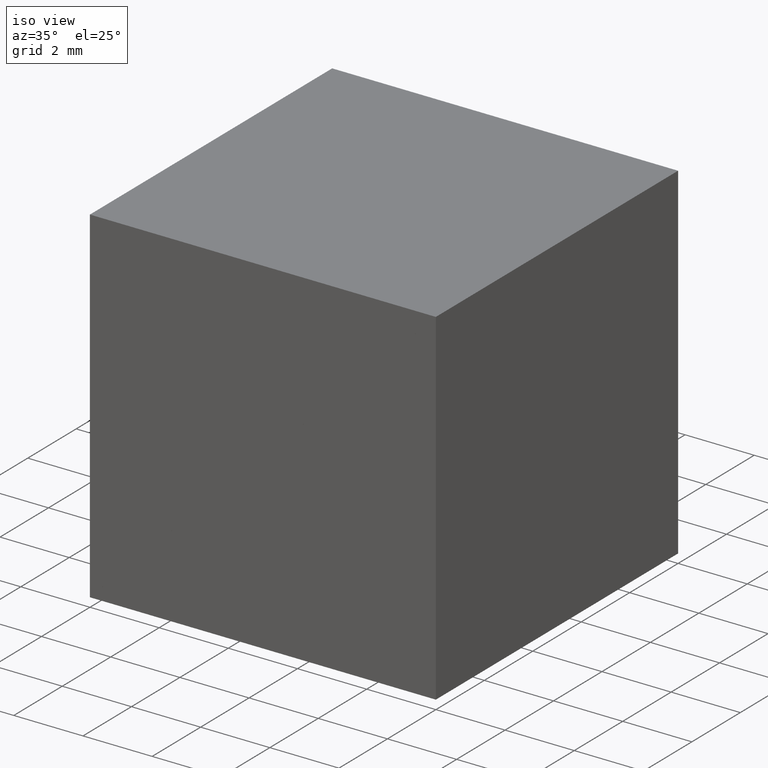
[diagram: clean part render]
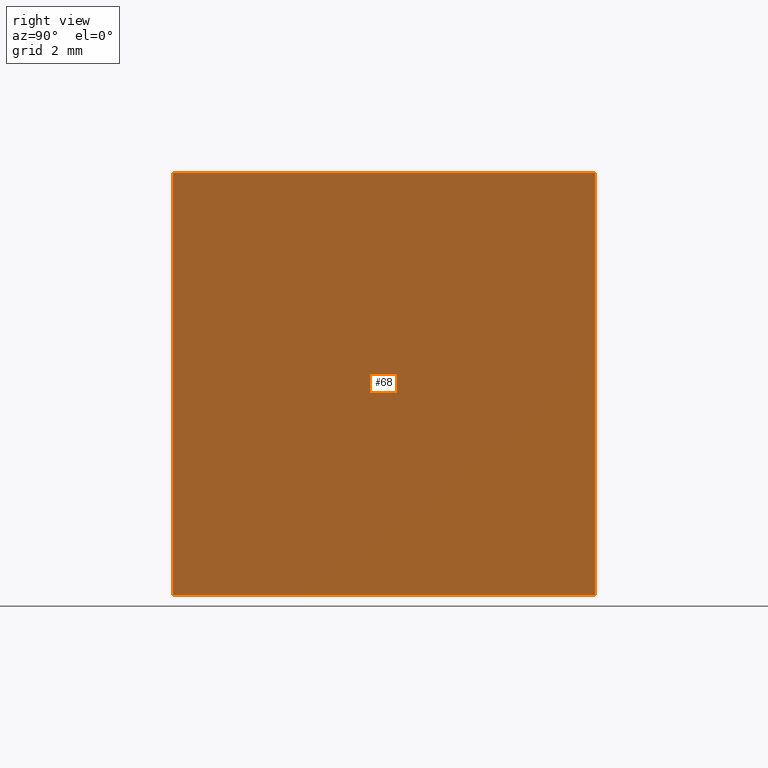
[diagram: tour spotlight — one face highlighted and labeled with its STEP entity id]
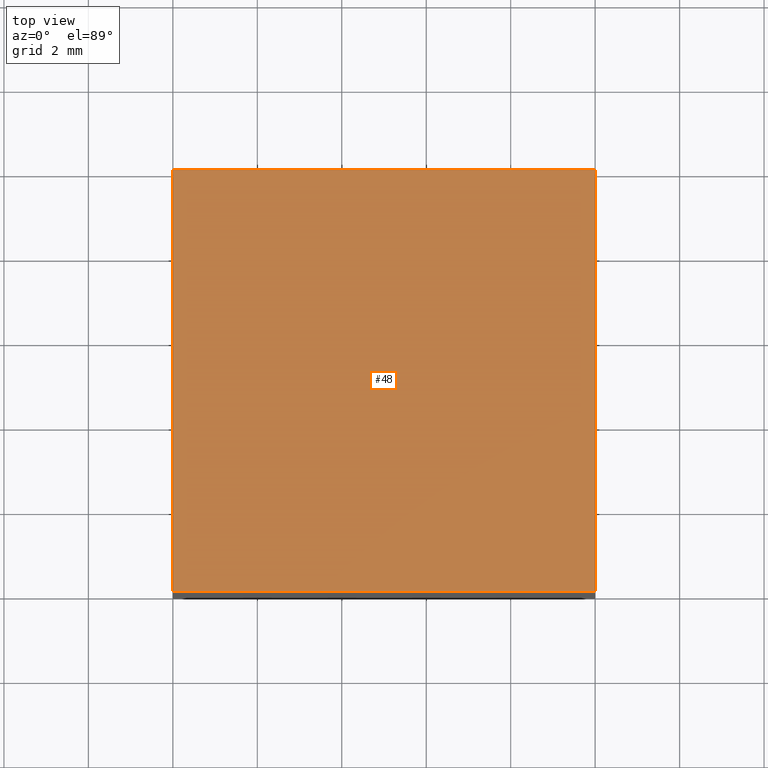
[diagram: tour spotlight — one face highlighted and labeled with its STEP entity id]
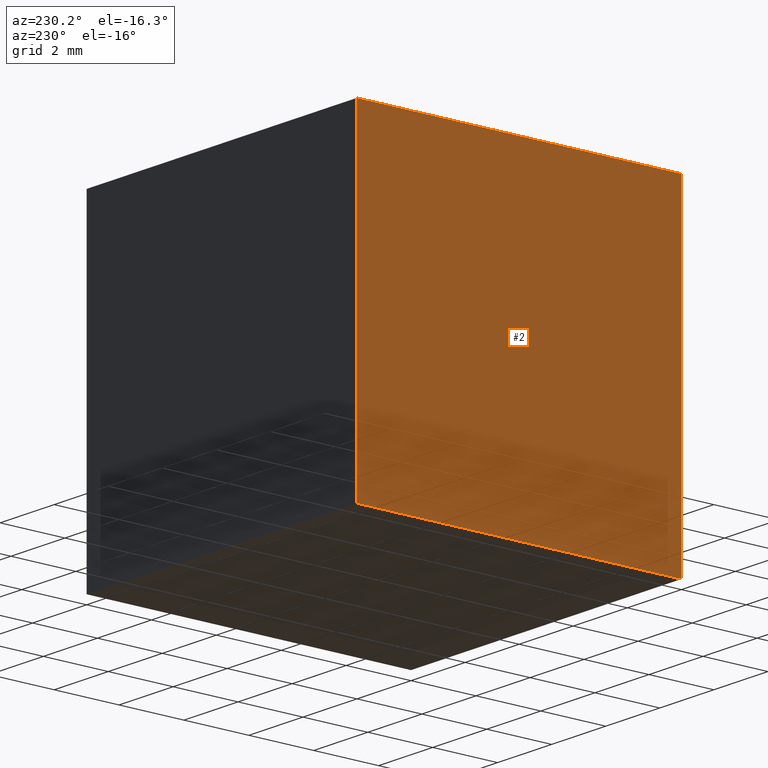
[diagram: tour spotlight — one face highlighted and labeled with its STEP entity id]
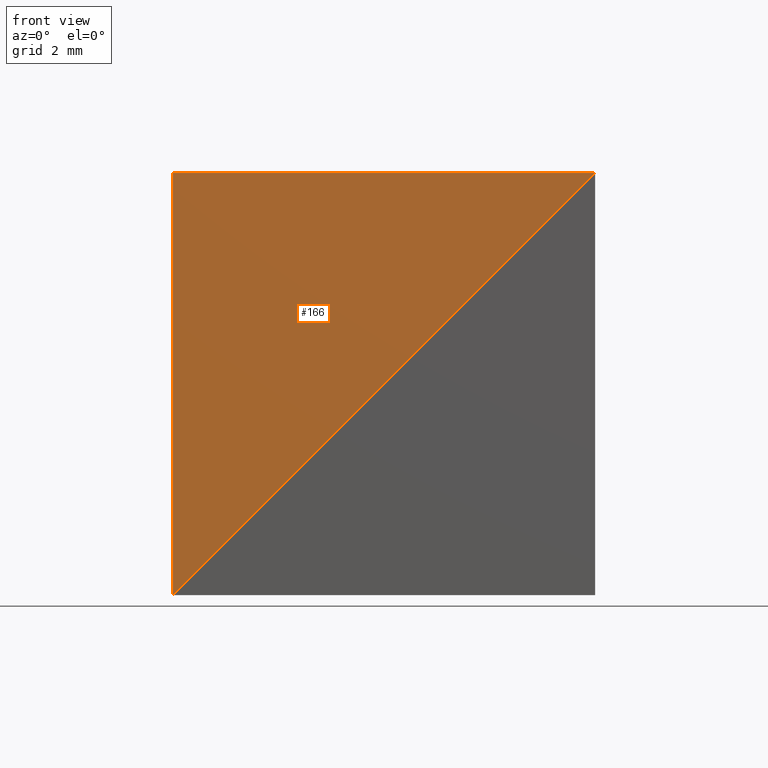
[diagram: tour spotlight — one face highlighted and labeled with its STEP entity id]
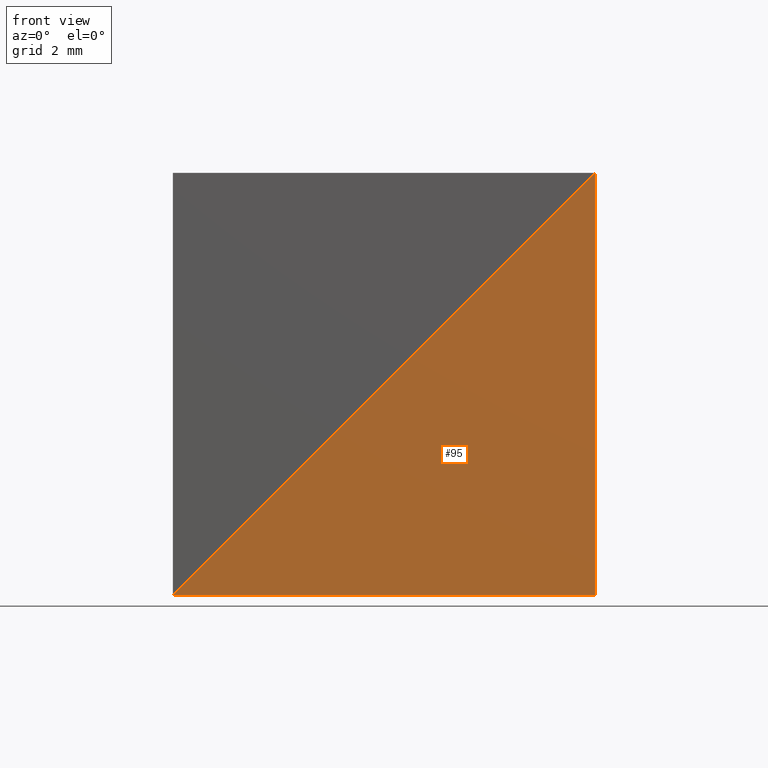
[diagram: tour spotlight — one face highlighted and labeled with its STEP entity id]
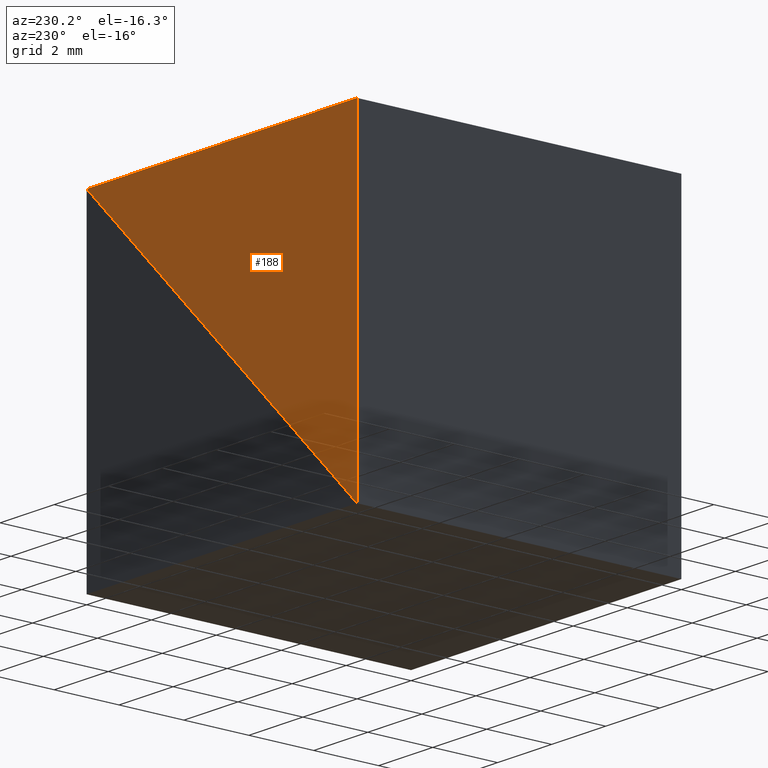
[diagram: tour spotlight — one face highlighted and labeled with its STEP entity id]
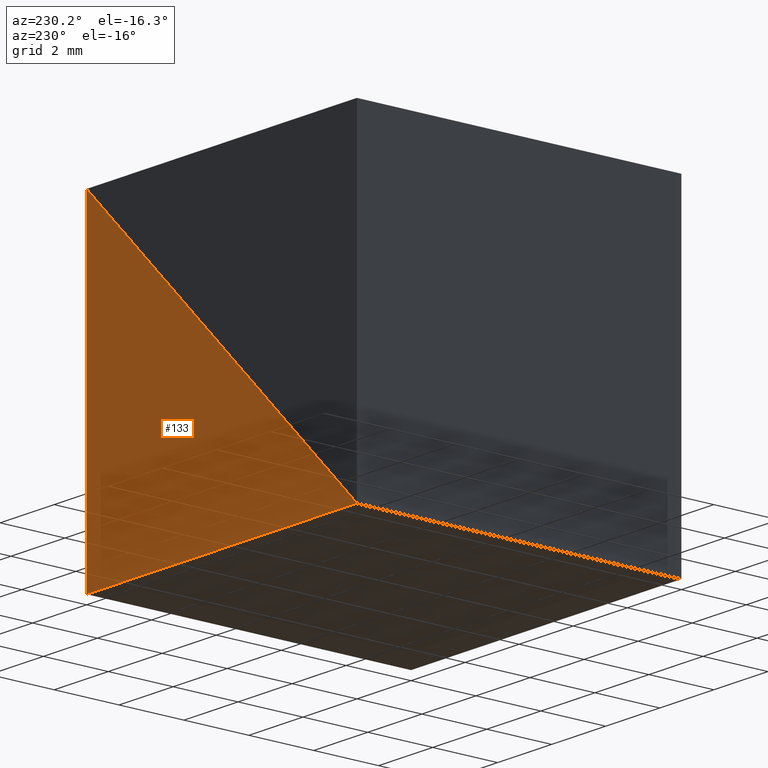
[diagram: tour spotlight — one face highlighted and labeled with its STEP entity id]
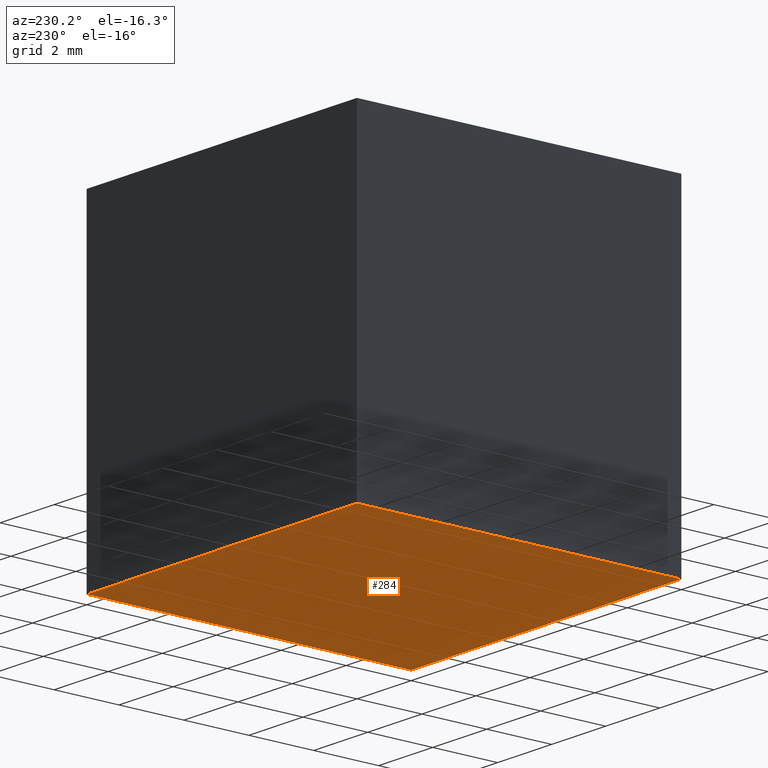
[diagram: tour spotlight — one face highlighted and labeled with its STEP entity id]
A machine part: a face-by-face anatomy tour. The part has 10 B-rep faces; the first image is the clean iso view, then the 8 largest visible faces are spotlighted one at a time (largest first), each with its STEP entity span.

Face 1 — right view, entity #68. In plain terms, the highlighted planar face has unit normal (-1, 0, 0).
Definition (entity closure, byte-faithful):
#4 = VERTEX_POINT ( 'NONE', #5 ) ;
#5 = CARTESIAN_POINT ( 'NONE',  ( 0.0000000000000000000, 0.0000000000000000000, 0.0000000000000000000 ) ) ;
#8 = CARTESIAN_POINT ( 'NONE',  ( 0.0000000000000000000, 0.0000000000000000000, -10.00000000000000000 ) ) ;
#9 = EDGE_LOOP ( 'NONE', ( #236, #131, #32, #121 ) ) ;
#17 = EDGE_CURVE ( 'NONE', #240, #77, #237, .T. ) ;
#20 = LINE ( 'NONE', #261, #192 ) ;
#32 = ORIENTED_EDGE ( 'NONE', *, *, #245, .F. ) ;
#34 = EDGE_CURVE ( 'NONE', #4, #77, #20, .T. ) ;
#40 = VECTOR ( 'NONE', #65, 1000.000000000000000 ) ;
#44 = DIRECTION ( 'NONE',  ( -0.0000000000000000000, -1.000000000000000000, -0.0000000000000000000 ) ) ;
#54 = DIRECTION ( 'NONE',  ( -1.000000000000000000, 0.0000000000000000000, 0.0000000000000000000 ) ) ;
#65 = DIRECTION ( 'NONE',  ( 0.0000000000000000000, 0.0000000000000000000, -1.000000000000000000 ) ) ;
#68 = ADVANCED_FACE ( 'NONE', ( #194 ), #226, .F. ) ;
#70 = DIRECTION ( 'NONE',  ( 0.0000000000000000000, 0.0000000000000000000, -1.000000000000000000 ) ) ;
#74 = CARTESIAN_POINT ( 'NONE',  ( 0.0000000000000000000, 10.00000000000000000, 0.0000000000000000000 ) ) ;
#77 = VERTEX_POINT ( 'NONE', #8 ) ;
#81 = VECTOR ( 'NONE', #44, 1000.000000000000000 ) ;
#91 = CARTESIAN_POINT ( 'NONE',  ( 0.0000000000000000000, 10.00000000000000000, 0.0000000000000000000 ) ) ;
#101 = LINE ( 'NONE', #91, #40 ) ;
#110 = AXIS2_PLACEMENT_3D ( 'NONE', #74, #54, #197 ) ;
#111 = CARTESIAN_POINT ( 'NONE',  ( 0.0000000000000000000, 10.00000000000000000, -10.00000000000000000 ) ) ;
#118 = DIRECTION ( 'NONE',  ( -0.0000000000000000000, -1.000000000000000000, -0.0000000000000000000 ) ) ;
#121 = ORIENTED_EDGE ( 'NONE', *, *, #232, .T. ) ;
#129 = CARTESIAN_POINT ( 'NONE',  ( 0.0000000000000000000, 10.00000000000000000, 0.0000000000000000000 ) ) ;
#131 = ORIENTED_EDGE ( 'NONE', *, *, #17, .F. ) ;
#140 = CARTESIAN_POINT ( 'NONE',  ( 0.0000000000000000000, 10.00000000000000000, -10.00000000000000000 ) ) ;
#142 = LINE ( 'NONE', #129, #81 ) ;
#192 = VECTOR ( 'NONE', #70, 1000.000000000000000 ) ;
#194 = FACE_OUTER_BOUND ( 'NONE', #9, .T. ) ;
#197 = DIRECTION ( 'NONE',  ( 0.0000000000000000000, 0.0000000000000000000, 1.000000000000000000 ) ) ;
#199 = VERTEX_POINT ( 'NONE', #223 ) ;
#223 = CARTESIAN_POINT ( 'NONE',  ( 0.0000000000000000000, 10.00000000000000000, 0.0000000000000000000 ) ) ;
#226 = PLANE ( 'NONE',  #110 ) ;
#232 = EDGE_CURVE ( 'NONE', #199, #4, #142, .T. ) ;
#236 = ORIENTED_EDGE ( 'NONE', *, *, #34, .T. ) ;
#237 = LINE ( 'NONE', #140, #293 ) ;
#240 = VERTEX_POINT ( 'NONE', #111 ) ;
#245 = EDGE_CURVE ( 'NONE', #199, #240, #101, .T. ) ;
#261 = CARTESIAN_POINT ( 'NONE',  ( 0.0000000000000000000, 0.0000000000000000000, 0.0000000000000000000 ) ) ;
#293 = VECTOR ( 'NONE', #118, 1000.000000000000000 ) ;

Face 2 — top view, entity #48. In plain terms, the highlighted planar face has unit normal (-0, 0, 1).
Definition (entity closure, byte-faithful):
#10 = DIRECTION ( 'NONE',  ( -0.0000000000000000000, 0.0000000000000000000, 1.000000000000000000 ) ) ;
#16 = VECTOR ( 'NONE', #174, 1000.000000000000000 ) ;
#28 = ORIENTED_EDGE ( 'NONE', *, *, #234, .F. ) ;
#31 = VECTOR ( 'NONE', #157, 1000.000000000000000 ) ;
#36 = CARTESIAN_POINT ( 'NONE',  ( -10.00000000000000000, 10.00000000000000000, 0.0000000000000000000 ) ) ;
#45 = CARTESIAN_POINT ( 'NONE',  ( 0.0000000000000000000, 10.00000000000000000, 0.0000000000000000000 ) ) ;
#48 = ADVANCED_FACE ( 'NONE', ( #247 ), #198, .T. ) ;
#52 = ORIENTED_EDGE ( 'NONE', *, *, #61, .T. ) ;
#61 = EDGE_CURVE ( 'NONE', #246, #98, #76, .T. ) ;
#62 = EDGE_LOOP ( 'NONE', ( #28, #150, #264, #52 ) ) ;
#75 = AXIS2_PLACEMENT_3D ( 'NONE', #36, #10, #148 ) ;
#76 = LINE ( 'NONE', #289, #16 ) ;
#88 = DIRECTION ( 'NONE',  ( -1.000000000000000000, -0.0000000000000000000, -0.0000000000000000000 ) ) ;
#90 = LINE ( 'NONE', #242, #262 ) ;
#98 = VERTEX_POINT ( 'NONE', #173 ) ;
#127 = CARTESIAN_POINT ( 'NONE',  ( 0.0000000000000000000, 0.0000000000000000000, 0.0000000000000000000 ) ) ;
#148 = DIRECTION ( 'NONE',  ( 1.000000000000000000, 0.0000000000000000000, 0.0000000000000000000 ) ) ;
#150 = ORIENTED_EDGE ( 'NONE', *, *, #243, .F. ) ;
#157 = DIRECTION ( 'NONE',  ( -1.000000000000000000, -0.0000000000000000000, -0.0000000000000000000 ) ) ;
#170 = VERTEX_POINT ( 'NONE', #172 ) ;
#172 = CARTESIAN_POINT ( 'NONE',  ( 0.0000000000000000000, 10.00000000000000000, 0.0000000000000000000 ) ) ;
#173 = CARTESIAN_POINT ( 'NONE',  ( -10.00000000000000000, 0.0000000000000000000, 0.0000000000000000000 ) ) ;
#174 = DIRECTION ( 'NONE',  ( 0.0000000000000000000, -1.000000000000000000, 0.0000000000000000000 ) ) ;
#181 = CARTESIAN_POINT ( 'NONE',  ( -10.00000000000000000, 10.00000000000000000, 0.0000000000000000000 ) ) ;
#198 = PLANE ( 'NONE',  #75 ) ;
#202 = LINE ( 'NONE', #45, #229 ) ;
#213 = DIRECTION ( 'NONE',  ( 0.0000000000000000000, -1.000000000000000000, 0.0000000000000000000 ) ) ;
#222 = LINE ( 'NONE', #181, #31 ) ;
#229 = VECTOR ( 'NONE', #213, 1000.000000000000000 ) ;
#234 = EDGE_CURVE ( 'NONE', #292, #98, #90, .T. ) ;
#242 = CARTESIAN_POINT ( 'NONE',  ( -10.00000000000000000, 0.0000000000000000000, 0.0000000000000000000 ) ) ;
#243 = EDGE_CURVE ( 'NONE', #170, #292, #202, .T. ) ;
#246 = VERTEX_POINT ( 'NONE', #300 ) ;
#247 = FACE_OUTER_BOUND ( 'NONE', #62, .T. ) ;
#257 = EDGE_CURVE ( 'NONE', #170, #246, #222, .T. ) ;
#262 = VECTOR ( 'NONE', #88, 1000.000000000000000 ) ;
#264 = ORIENTED_EDGE ( 'NONE', *, *, #257, .T. ) ;
#289 = CARTESIAN_POINT ( 'NONE',  ( -10.00000000000000000, 10.00000000000000000, 0.0000000000000000000 ) ) ;
#292 = VERTEX_POINT ( 'NONE', #127 ) ;
#300 = CARTESIAN_POINT ( 'NONE',  ( -10.00000000000000000, 10.00000000000000000, 0.0000000000000000000 ) ) ;

Face 3 — auxiliary view, entity #2. In plain terms, the highlighted planar face has unit normal (-1, 0, 0).
Definition (entity closure, byte-faithful):
#2 = ADVANCED_FACE ( 'NONE', ( #278 ), #285, .T. ) ;
#3 = EDGE_CURVE ( 'NONE', #230, #56, #249, .T. ) ;
#12 = CARTESIAN_POINT ( 'NONE',  ( -10.00000000000000000, 10.00000000000000000, -9.999999999999996400 ) ) ;
#16 = VECTOR ( 'NONE', #174, 1000.000000000000000 ) ;
#25 = VECTOR ( 'NONE', #207, 1000.000000000000000 ) ;
#29 = LINE ( 'NONE', #12, #269 ) ;
#47 = AXIS2_PLACEMENT_3D ( 'NONE', #167, #189, #97 ) ;
#56 = VERTEX_POINT ( 'NONE', #191 ) ;
#61 = EDGE_CURVE ( 'NONE', #246, #98, #76, .T. ) ;
#76 = LINE ( 'NONE', #289, #16 ) ;
#92 = CARTESIAN_POINT ( 'NONE',  ( -10.00000000000000000, 10.00000000000000000, -9.999999999999996400 ) ) ;
#96 = ORIENTED_EDGE ( 'NONE', *, *, #61, .F. ) ;
#97 = DIRECTION ( 'NONE',  ( 0.0000000000000000000, 0.0000000000000000000, 1.000000000000000000 ) ) ;
#98 = VERTEX_POINT ( 'NONE', #173 ) ;
#99 = CARTESIAN_POINT ( 'NONE',  ( -10.00000000000000000, 10.00000000000000000, -9.999999999999996400 ) ) ;
#115 = DIRECTION ( 'NONE',  ( -0.0000000000000000000, -0.0000000000000000000, -1.000000000000000000 ) ) ;
#167 = CARTESIAN_POINT ( 'NONE',  ( -10.00000000000000000, 10.00000000000000000, -9.999999999999996400 ) ) ;
#173 = CARTESIAN_POINT ( 'NONE',  ( -10.00000000000000000, 0.0000000000000000000, 0.0000000000000000000 ) ) ;
#174 = DIRECTION ( 'NONE',  ( 0.0000000000000000000, -1.000000000000000000, 0.0000000000000000000 ) ) ;
#182 = ORIENTED_EDGE ( 'NONE', *, *, #3, .T. ) ;
#189 = DIRECTION ( 'NONE',  ( -1.000000000000000000, 0.0000000000000000000, 0.0000000000000000000 ) ) ;
#191 = CARTESIAN_POINT ( 'NONE',  ( -10.00000000000000000, -0.0000000000000000000, -9.999999999999996400 ) ) ;
#204 = VECTOR ( 'NONE', #220, 1000.000000000000000 ) ;
#207 = DIRECTION ( 'NONE',  ( -0.0000000000000000000, -0.0000000000000000000, -1.000000000000000000 ) ) ;
#218 = EDGE_CURVE ( 'NONE', #246, #230, #29, .T. ) ;
#220 = DIRECTION ( 'NONE',  ( 0.0000000000000000000, -1.000000000000000000, 0.0000000000000000000 ) ) ;
#230 = VERTEX_POINT ( 'NONE', #92 ) ;
#233 = CARTESIAN_POINT ( 'NONE',  ( -10.00000000000000000, -0.0000000000000000000, -9.999999999999996400 ) ) ;
#239 = ORIENTED_EDGE ( 'NONE', *, *, #276, .F. ) ;
#246 = VERTEX_POINT ( 'NONE', #300 ) ;
#249 = LINE ( 'NONE', #99, #204 ) ;
#269 = VECTOR ( 'NONE', #115, 1000.000000000000000 ) ;
#276 = EDGE_CURVE ( 'NONE', #98, #56, #281, .T. ) ;
#278 = FACE_OUTER_BOUND ( 'NONE', #279, .T. ) ;
#279 = EDGE_LOOP ( 'NONE', ( #239, #96, #283, #182 ) ) ;
#281 = LINE ( 'NONE', #233, #25 ) ;
#283 = ORIENTED_EDGE ( 'NONE', *, *, #218, .T. ) ;
#285 = PLANE ( 'NONE',  #47 ) ;
#289 = CARTESIAN_POINT ( 'NONE',  ( -10.00000000000000000, 10.00000000000000000, 0.0000000000000000000 ) ) ;
#300 = CARTESIAN_POINT ( 'NONE',  ( -10.00000000000000000, 10.00000000000000000, 0.0000000000000000000 ) ) ;

Face 4 — front view, entity #166. In plain terms, the highlighted planar face has unit normal (0, 1, 0).
Definition (entity closure, byte-faithful):
#15 = VECTOR ( 'NONE', #205, 1000.000000000000000 ) ;
#21 = AXIS2_PLACEMENT_3D ( 'NONE', #119, #244, #71 ) ;
#25 = VECTOR ( 'NONE', #207, 1000.000000000000000 ) ;
#56 = VERTEX_POINT ( 'NONE', #191 ) ;
#60 = CARTESIAN_POINT ( 'NONE',  ( 0.0000000000000000000, 0.0000000000000000000, 0.0000000000000000000 ) ) ;
#71 = DIRECTION ( 'NONE',  ( 0.0000000000000000000, -0.0000000000000000000, 1.000000000000000000 ) ) ;
#88 = DIRECTION ( 'NONE',  ( -1.000000000000000000, -0.0000000000000000000, -0.0000000000000000000 ) ) ;
#90 = LINE ( 'NONE', #242, #262 ) ;
#94 = ORIENTED_EDGE ( 'NONE', *, *, #234, .T. ) ;
#98 = VERTEX_POINT ( 'NONE', #173 ) ;
#117 = ORIENTED_EDGE ( 'NONE', *, *, #276, .T. ) ;
#119 = CARTESIAN_POINT ( 'NONE',  ( 0.0000000000000000000, 0.0000000000000000000, 0.0000000000000000000 ) ) ;
#127 = CARTESIAN_POINT ( 'NONE',  ( 0.0000000000000000000, 0.0000000000000000000, 0.0000000000000000000 ) ) ;
#166 = ADVANCED_FACE ( 'NONE', ( #210 ), #225, .F. ) ;
#173 = CARTESIAN_POINT ( 'NONE',  ( -10.00000000000000000, 0.0000000000000000000, 0.0000000000000000000 ) ) ;
#191 = CARTESIAN_POINT ( 'NONE',  ( -10.00000000000000000, -0.0000000000000000000, -9.999999999999996400 ) ) ;
#205 = DIRECTION ( 'NONE',  ( 0.7071067811865476800, 0.0000000000000000000, 0.7071067811865474600 ) ) ;
#206 = LINE ( 'NONE', #60, #15 ) ;
#207 = DIRECTION ( 'NONE',  ( -0.0000000000000000000, -0.0000000000000000000, -1.000000000000000000 ) ) ;
#210 = FACE_OUTER_BOUND ( 'NONE', #219, .T. ) ;
#219 = EDGE_LOOP ( 'NONE', ( #266, #94, #117 ) ) ;
#225 = PLANE ( 'NONE',  #21 ) ;
#233 = CARTESIAN_POINT ( 'NONE',  ( -10.00000000000000000, -0.0000000000000000000, -9.999999999999996400 ) ) ;
#234 = EDGE_CURVE ( 'NONE', #292, #98, #90, .T. ) ;
#242 = CARTESIAN_POINT ( 'NONE',  ( -10.00000000000000000, 0.0000000000000000000, 0.0000000000000000000 ) ) ;
#244 = DIRECTION ( 'NONE',  ( 0.0000000000000000000, 1.000000000000000000, 0.0000000000000000000 ) ) ;
#262 = VECTOR ( 'NONE', #88, 1000.000000000000000 ) ;
#266 = ORIENTED_EDGE ( 'NONE', *, *, #288, .T. ) ;
#276 = EDGE_CURVE ( 'NONE', #98, #56, #281, .T. ) ;
#281 = LINE ( 'NONE', #233, #25 ) ;
#288 = EDGE_CURVE ( 'NONE', #56, #292, #206, .T. ) ;
#292 = VERTEX_POINT ( 'NONE', #127 ) ;

Face 5 — front view, entity #95. In plain terms, the highlighted planar face has unit normal (-0, 1, 0).
Definition (entity closure, byte-faithful):
#4 = VERTEX_POINT ( 'NONE', #5 ) ;
#5 = CARTESIAN_POINT ( 'NONE',  ( 0.0000000000000000000, 0.0000000000000000000, 0.0000000000000000000 ) ) ;
#6 = EDGE_LOOP ( 'NONE', ( #86, #145, #113 ) ) ;
#8 = CARTESIAN_POINT ( 'NONE',  ( 0.0000000000000000000, 0.0000000000000000000, -10.00000000000000000 ) ) ;
#20 = LINE ( 'NONE', #261, #192 ) ;
#34 = EDGE_CURVE ( 'NONE', #4, #77, #20, .T. ) ;
#35 = CARTESIAN_POINT ( 'NONE',  ( -10.00000000000000000, 0.0000000000000000000, -9.999999999999996400 ) ) ;
#46 = EDGE_CURVE ( 'NONE', #77, #84, #134, .T. ) ;
#50 = CARTESIAN_POINT ( 'NONE',  ( 0.0000000000000000000, 0.0000000000000000000, -10.00000000000000000 ) ) ;
#70 = DIRECTION ( 'NONE',  ( 0.0000000000000000000, 0.0000000000000000000, -1.000000000000000000 ) ) ;
#77 = VERTEX_POINT ( 'NONE', #8 ) ;
#84 = VERTEX_POINT ( 'NONE', #35 ) ;
#86 = ORIENTED_EDGE ( 'NONE', *, *, #256, .F. ) ;
#95 = ADVANCED_FACE ( 'NONE', ( #186 ), #287, .F. ) ;
#113 = ORIENTED_EDGE ( 'NONE', *, *, #34, .F. ) ;
#120 = DIRECTION ( 'NONE',  ( -0.0000000000000000000, 1.000000000000000000, 0.0000000000000000000 ) ) ;
#122 = CARTESIAN_POINT ( 'NONE',  ( 0.0000000000000000000, 0.0000000000000000000, 0.0000000000000000000 ) ) ;
#134 = LINE ( 'NONE', #50, #209 ) ;
#145 = ORIENTED_EDGE ( 'NONE', *, *, #46, .F. ) ;
#154 = VECTOR ( 'NONE', #187, 1000.000000000000000 ) ;
#163 = LINE ( 'NONE', #255, #154 ) ;
#169 = DIRECTION ( 'NONE',  ( -1.000000000000000000, 0.0000000000000000000, 3.469446951953614200E-016 ) ) ;
#186 = FACE_OUTER_BOUND ( 'NONE', #6, .T. ) ;
#187 = DIRECTION ( 'NONE',  ( 0.7071067811865476800, 0.0000000000000000000, 0.7071067811865474600 ) ) ;
#192 = VECTOR ( 'NONE', #70, 1000.000000000000000 ) ;
#209 = VECTOR ( 'NONE', #169, 1000.000000000000000 ) ;
#255 = CARTESIAN_POINT ( 'NONE',  ( -10.00000000000000000, 0.0000000000000000000, -9.999999999999996400 ) ) ;
#256 = EDGE_CURVE ( 'NONE', #84, #4, #163, .T. ) ;
#260 = AXIS2_PLACEMENT_3D ( 'NONE', #122, #120, #265 ) ;
#261 = CARTESIAN_POINT ( 'NONE',  ( 0.0000000000000000000, 0.0000000000000000000, 0.0000000000000000000 ) ) ;
#265 = DIRECTION ( 'NONE',  ( 0.0000000000000000000, -0.0000000000000000000, 1.000000000000000000 ) ) ;
#287 = PLANE ( 'NONE',  #260 ) ;

Face 6 — auxiliary view, entity #188. In plain terms, the highlighted planar face has unit normal (0, 1, 0).
Definition (entity closure, byte-faithful):
#12 = CARTESIAN_POINT ( 'NONE',  ( -10.00000000000000000, 10.00000000000000000, -9.999999999999996400 ) ) ;
#29 = LINE ( 'NONE', #12, #269 ) ;
#30 = DIRECTION ( 'NONE',  ( 0.0000000000000000000, 1.000000000000000000, 0.0000000000000000000 ) ) ;
#31 = VECTOR ( 'NONE', #157, 1000.000000000000000 ) ;
#51 = AXIS2_PLACEMENT_3D ( 'NONE', #103, #30, #195 ) ;
#92 = CARTESIAN_POINT ( 'NONE',  ( -10.00000000000000000, 10.00000000000000000, -9.999999999999996400 ) ) ;
#93 = LINE ( 'NONE', #250, #271 ) ;
#103 = CARTESIAN_POINT ( 'NONE',  ( 0.0000000000000000000, 10.00000000000000000, 0.0000000000000000000 ) ) ;
#115 = DIRECTION ( 'NONE',  ( -0.0000000000000000000, -0.0000000000000000000, -1.000000000000000000 ) ) ;
#123 = ORIENTED_EDGE ( 'NONE', *, *, #257, .F. ) ;
#132 = FACE_OUTER_BOUND ( 'NONE', #165, .T. ) ;
#137 = ORIENTED_EDGE ( 'NONE', *, *, #274, .F. ) ;
#144 = PLANE ( 'NONE',  #51 ) ;
#157 = DIRECTION ( 'NONE',  ( -1.000000000000000000, -0.0000000000000000000, -0.0000000000000000000 ) ) ;
#165 = EDGE_LOOP ( 'NONE', ( #137, #248, #123 ) ) ;
#170 = VERTEX_POINT ( 'NONE', #172 ) ;
#172 = CARTESIAN_POINT ( 'NONE',  ( 0.0000000000000000000, 10.00000000000000000, 0.0000000000000000000 ) ) ;
#177 = DIRECTION ( 'NONE',  ( 0.7071067811865476800, 0.0000000000000000000, 0.7071067811865474600 ) ) ;
#181 = CARTESIAN_POINT ( 'NONE',  ( -10.00000000000000000, 10.00000000000000000, 0.0000000000000000000 ) ) ;
#188 = ADVANCED_FACE ( 'NONE', ( #132 ), #144, .T. ) ;
#195 = DIRECTION ( 'NONE',  ( 0.0000000000000000000, -0.0000000000000000000, 1.000000000000000000 ) ) ;
#218 = EDGE_CURVE ( 'NONE', #246, #230, #29, .T. ) ;
#222 = LINE ( 'NONE', #181, #31 ) ;
#230 = VERTEX_POINT ( 'NONE', #92 ) ;
#246 = VERTEX_POINT ( 'NONE', #300 ) ;
#248 = ORIENTED_EDGE ( 'NONE', *, *, #218, .F. ) ;
#250 = CARTESIAN_POINT ( 'NONE',  ( 0.0000000000000000000, 10.00000000000000000, 0.0000000000000000000 ) ) ;
#257 = EDGE_CURVE ( 'NONE', #170, #246, #222, .T. ) ;
#269 = VECTOR ( 'NONE', #115, 1000.000000000000000 ) ;
#271 = VECTOR ( 'NONE', #177, 1000.000000000000000 ) ;
#274 = EDGE_CURVE ( 'NONE', #230, #170, #93, .T. ) ;
#300 = CARTESIAN_POINT ( 'NONE',  ( -10.00000000000000000, 10.00000000000000000, 0.0000000000000000000 ) ) ;

Face 7 — auxiliary view, entity #133. In plain terms, the highlighted planar face has unit normal (-0, 1, 0).
Definition (entity closure, byte-faithful):
#33 = DIRECTION ( 'NONE',  ( 0.0000000000000000000, -0.0000000000000000000, 1.000000000000000000 ) ) ;
#40 = VECTOR ( 'NONE', #65, 1000.000000000000000 ) ;
#41 = ORIENTED_EDGE ( 'NONE', *, *, #286, .T. ) ;
#65 = DIRECTION ( 'NONE',  ( 0.0000000000000000000, 0.0000000000000000000, -1.000000000000000000 ) ) ;
#72 = CARTESIAN_POINT ( 'NONE',  ( -10.00000000000000000, 10.00000000000000000, -9.999999999999996400 ) ) ;
#73 = ORIENTED_EDGE ( 'NONE', *, *, #245, .T. ) ;
#91 = CARTESIAN_POINT ( 'NONE',  ( 0.0000000000000000000, 10.00000000000000000, 0.0000000000000000000 ) ) ;
#101 = LINE ( 'NONE', #91, #40 ) ;
#102 = VERTEX_POINT ( 'NONE', #72 ) ;
#104 = PLANE ( 'NONE',  #290 ) ;
#108 = CARTESIAN_POINT ( 'NONE',  ( -10.00000000000000000, 10.00000000000000000, -9.999999999999996400 ) ) ;
#111 = CARTESIAN_POINT ( 'NONE',  ( 0.0000000000000000000, 10.00000000000000000, -10.00000000000000000 ) ) ;
#130 = LINE ( 'NONE', #108, #143 ) ;
#133 = ADVANCED_FACE ( 'NONE', ( #212 ), #104, .T. ) ;
#143 = VECTOR ( 'NONE', #231, 1000.000000000000000 ) ;
#146 = CARTESIAN_POINT ( 'NONE',  ( 0.0000000000000000000, 10.00000000000000000, 0.0000000000000000000 ) ) ;
#151 = VECTOR ( 'NONE', #282, 1000.000000000000000 ) ;
#152 = CARTESIAN_POINT ( 'NONE',  ( 0.0000000000000000000, 10.00000000000000000, -10.00000000000000000 ) ) ;
#196 = DIRECTION ( 'NONE',  ( -0.0000000000000000000, 1.000000000000000000, 0.0000000000000000000 ) ) ;
#199 = VERTEX_POINT ( 'NONE', #223 ) ;
#212 = FACE_OUTER_BOUND ( 'NONE', #217, .T. ) ;
#216 = EDGE_CURVE ( 'NONE', #240, #102, #221, .T. ) ;
#217 = EDGE_LOOP ( 'NONE', ( #41, #73, #253 ) ) ;
#221 = LINE ( 'NONE', #152, #151 ) ;
#223 = CARTESIAN_POINT ( 'NONE',  ( 0.0000000000000000000, 10.00000000000000000, 0.0000000000000000000 ) ) ;
#231 = DIRECTION ( 'NONE',  ( 0.7071067811865476800, 0.0000000000000000000, 0.7071067811865474600 ) ) ;
#240 = VERTEX_POINT ( 'NONE', #111 ) ;
#245 = EDGE_CURVE ( 'NONE', #199, #240, #101, .T. ) ;
#253 = ORIENTED_EDGE ( 'NONE', *, *, #216, .T. ) ;
#282 = DIRECTION ( 'NONE',  ( -1.000000000000000000, 0.0000000000000000000, 3.469446951953614200E-016 ) ) ;
#286 = EDGE_CURVE ( 'NONE', #102, #199, #130, .T. ) ;
#290 = AXIS2_PLACEMENT_3D ( 'NONE', #146, #196, #33 ) ;

Face 8 — auxiliary view, entity #284. In plain terms, the highlighted planar face has unit normal (0, -0, 1).
Definition (entity closure, byte-faithful):
#1 = EDGE_CURVE ( 'NONE', #102, #84, #64, .T. ) ;
#8 = CARTESIAN_POINT ( 'NONE',  ( 0.0000000000000000000, 0.0000000000000000000, -10.00000000000000000 ) ) ;
#14 = DIRECTION ( 'NONE',  ( 1.000000000000000000, 0.0000000000000000000, -3.469446951953614200E-016 ) ) ;
#17 = EDGE_CURVE ( 'NONE', #240, #77, #237, .T. ) ;
#27 = AXIS2_PLACEMENT_3D ( 'NONE', #275, #156, #14 ) ;
#35 = CARTESIAN_POINT ( 'NONE',  ( -10.00000000000000000, 0.0000000000000000000, -9.999999999999996400 ) ) ;
#46 = EDGE_CURVE ( 'NONE', #77, #84, #134, .T. ) ;
#50 = CARTESIAN_POINT ( 'NONE',  ( 0.0000000000000000000, 0.0000000000000000000, -10.00000000000000000 ) ) ;
#64 = LINE ( 'NONE', #259, #136 ) ;
#72 = CARTESIAN_POINT ( 'NONE',  ( -10.00000000000000000, 10.00000000000000000, -9.999999999999996400 ) ) ;
#77 = VERTEX_POINT ( 'NONE', #8 ) ;
#83 = FACE_OUTER_BOUND ( 'NONE', #149, .T. ) ;
#84 = VERTEX_POINT ( 'NONE', #35 ) ;
#102 = VERTEX_POINT ( 'NONE', #72 ) ;
#111 = CARTESIAN_POINT ( 'NONE',  ( 0.0000000000000000000, 10.00000000000000000, -10.00000000000000000 ) ) ;
#118 = DIRECTION ( 'NONE',  ( -0.0000000000000000000, -1.000000000000000000, -0.0000000000000000000 ) ) ;
#134 = LINE ( 'NONE', #50, #209 ) ;
#135 = DIRECTION ( 'NONE',  ( -0.0000000000000000000, -1.000000000000000000, -0.0000000000000000000 ) ) ;
#136 = VECTOR ( 'NONE', #135, 1000.000000000000000 ) ;
#140 = CARTESIAN_POINT ( 'NONE',  ( 0.0000000000000000000, 10.00000000000000000, -10.00000000000000000 ) ) ;
#149 = EDGE_LOOP ( 'NONE', ( #268, #208, #185, #277 ) ) ;
#151 = VECTOR ( 'NONE', #282, 1000.000000000000000 ) ;
#152 = CARTESIAN_POINT ( 'NONE',  ( 0.0000000000000000000, 10.00000000000000000, -10.00000000000000000 ) ) ;
#156 = DIRECTION ( 'NONE',  ( 3.469446951953614200E-016, -0.0000000000000000000, 1.000000000000000000 ) ) ;
#169 = DIRECTION ( 'NONE',  ( -1.000000000000000000, 0.0000000000000000000, 3.469446951953614200E-016 ) ) ;
#180 = PLANE ( 'NONE',  #27 ) ;
#185 = ORIENTED_EDGE ( 'NONE', *, *, #216, .F. ) ;
#208 = ORIENTED_EDGE ( 'NONE', *, *, #1, .F. ) ;
#209 = VECTOR ( 'NONE', #169, 1000.000000000000000 ) ;
#216 = EDGE_CURVE ( 'NONE', #240, #102, #221, .T. ) ;
#221 = LINE ( 'NONE', #152, #151 ) ;
#237 = LINE ( 'NONE', #140, #293 ) ;
#240 = VERTEX_POINT ( 'NONE', #111 ) ;
#259 = CARTESIAN_POINT ( 'NONE',  ( -10.00000000000000000, 10.00000000000000000, -9.999999999999996400 ) ) ;
#268 = ORIENTED_EDGE ( 'NONE', *, *, #46, .T. ) ;
#275 = CARTESIAN_POINT ( 'NONE',  ( 0.0000000000000000000, 10.00000000000000000, -10.00000000000000000 ) ) ;
#277 = ORIENTED_EDGE ( 'NONE', *, *, #17, .T. ) ;
#282 = DIRECTION ( 'NONE',  ( -1.000000000000000000, 0.0000000000000000000, 3.469446951953614200E-016 ) ) ;
#284 = ADVANCED_FACE ( 'NONE', ( #83 ), #180, .F. ) ;
#293 = VECTOR ( 'NONE', #118, 1000.000000000000000 ) ;